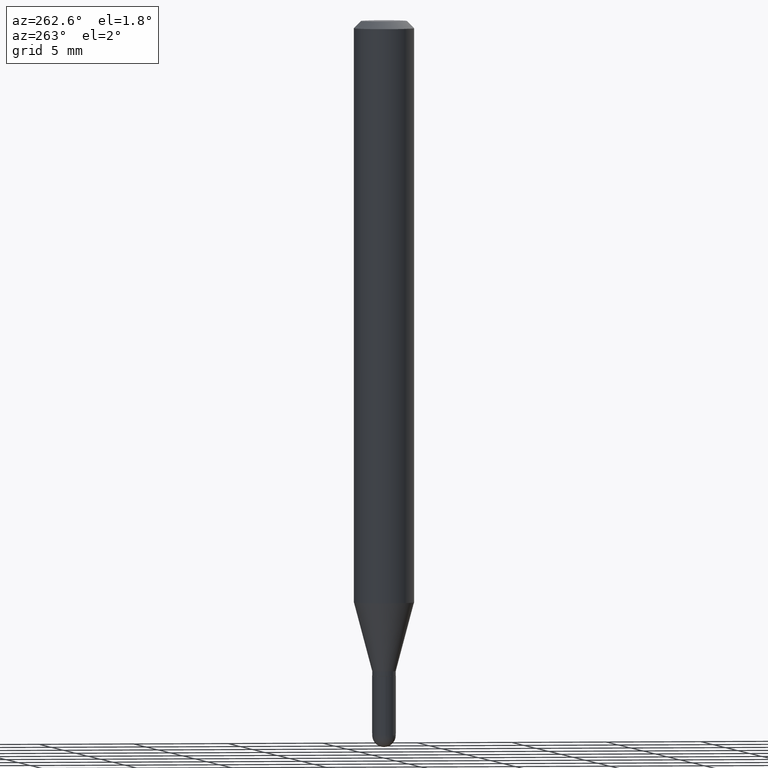
[diagram: clean part render]
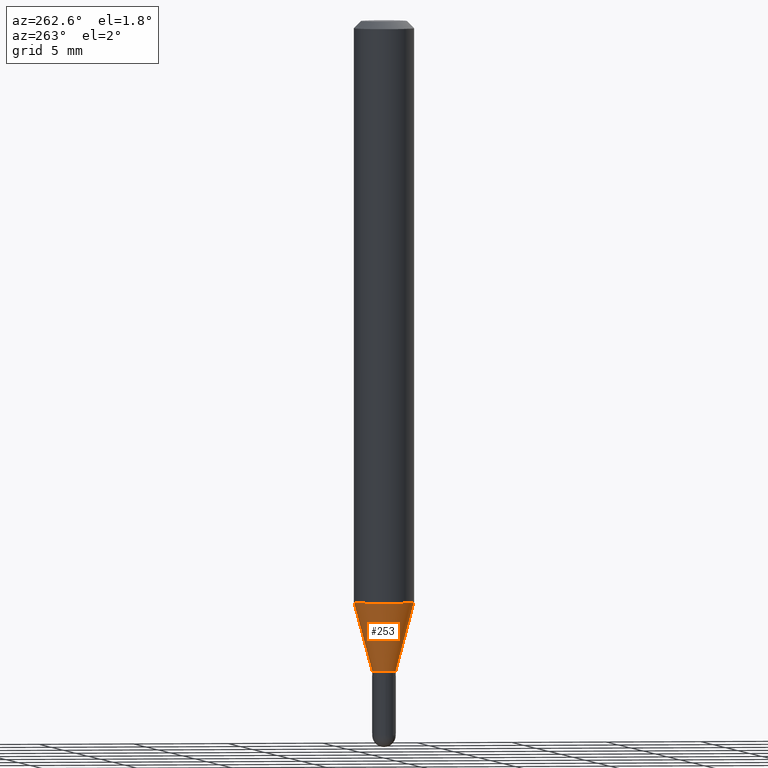
[diagram: same view with one face highlighted and labeled with its STEP entity id]
A machine part, auxiliary view. The second image highlights one B-rep face of the part: STEP entity #253.
In plain terms, the highlighted conical surface has half-angle 15 deg.
Its self-contained STEP definition (entity closure, byte-faithful):
#17 = CARTESIAN_POINT ( 'NONE',  ( 3.284268798558277710E-29, -4.689053435096215109E-15, -1.343000000000000416 ) ) ;
#41 = VECTOR ( 'NONE', #47, 39.37007874015748854 ) ;
#47 = DIRECTION ( 'NONE',  ( -1.807323732225332900E-15, -0.2588190451025185190, 0.9659258262890689783 ) ) ;
#50 = CARTESIAN_POINT ( 'NONE',  ( 3.090860900556744730E-16, 0.02449999999999523739, -1.343000000000000416 ) ) ;
#104 = CONICAL_SURFACE ( 'NONE', #461, 0.02449999999999992462, 0.2617993877991506291 ) ;
#110 = CIRCLE ( 'NONE', #509, 0.06250000000000000000 ) ;
#119 = EDGE_LOOP ( 'NONE', ( #469, #161, #244, #437 ) ) ;
#121 = DIRECTION ( 'NONE',  ( -6.982962677686265133E-15, -1.000000000000000000, 0.000000000000000000 ) ) ;
#122 = VERTEX_POINT ( 'NONE', #50 ) ;
#139 = CARTESIAN_POINT ( 'NONE',  ( 1.740829702612568216E-16, 0.02449999999999523392, -1.343000000000000416 ) ) ;
#141 = LINE ( 'NONE', #139, #401 ) ;
#148 = CARTESIAN_POINT ( 'NONE',  ( -1.710825856032801340E-16, -0.02450000000000461531, -1.343000000000000416 ) ) ;
#161 = ORIENTED_EDGE ( 'NONE', *, *, #195, .T. ) ;
#182 = DIRECTION ( 'NONE',  ( -2.445471927444732928E-29, 3.491476869021752385E-15, 1.000000000000000000 ) ) ;
#195 = EDGE_CURVE ( 'NONE', #122, #506, #203, .T. ) ;
#203 = CIRCLE ( 'NONE', #220, 0.02449999999999992462 ) ;
#205 = VERTEX_POINT ( 'NONE', #324 ) ;
#220 = AXIS2_PLACEMENT_3D ( 'NONE', #17, #182, #507 ) ;
#242 = CARTESIAN_POINT ( 'NONE',  ( -1.710825856032801340E-16, -0.02450000000000461531, -1.343000000000000416 ) ) ;
#244 = ORIENTED_EDGE ( 'NONE', *, *, #267, .T. ) ;
#253 = ADVANCED_FACE ( 'NONE', ( #318 ), #104, .T. ) ;
#267 = EDGE_CURVE ( 'NONE', #506, #205, #366, .T. ) ;
#314 = VERTEX_POINT ( 'NONE', #413 ) ;
#318 = FACE_OUTER_BOUND ( 'NONE', #119, .T. ) ;
#319 = EDGE_CURVE ( 'NONE', #314, #205, #110, .T. ) ;
#324 = CARTESIAN_POINT ( 'NONE',  ( -4.364351673553624323E-16, -0.06250000000000420497, -1.201182069312383138 ) ) ;
#345 = EDGE_CURVE ( 'NONE', #122, #314, #141, .T. ) ;
#346 = CARTESIAN_POINT ( 'NONE',  ( 2.937457030253406908E-29, -4.193899410487870118E-15, -1.201182069312383360 ) ) ;
#366 = LINE ( 'NONE', #242, #41 ) ;
#377 = DIRECTION ( 'NONE',  ( 1.839019923739602682E-15, 0.2588190451025252914, 0.9659258262890670910 ) ) ;
#401 = VECTOR ( 'NONE', #377, 39.37007874015748143 ) ;
#407 = DIRECTION ( 'NONE',  ( -2.445471927444732928E-29, 3.491476869021752385E-15, 1.000000000000000000 ) ) ;
#413 = CARTESIAN_POINT ( 'NONE',  ( 4.440892098500917054E-16, 0.06249999999999578809, -1.201182069312383804 ) ) ;
#420 = DIRECTION ( 'NONE',  ( -6.982962677686265922E-15, -1.000000000000000000, 4.370956789862821150E-15 ) ) ;
#437 = ORIENTED_EDGE ( 'NONE', *, *, #319, .F. ) ;
#450 = CARTESIAN_POINT ( 'NONE',  ( 3.284268798558277710E-29, -4.689053435096215109E-15, -1.343000000000000416 ) ) ;
#461 = AXIS2_PLACEMENT_3D ( 'NONE', #450, #407, #121 ) ;
#469 = ORIENTED_EDGE ( 'NONE', *, *, #345, .F. ) ;
#493 = DIRECTION ( 'NONE',  ( -2.445471927444732928E-29, 3.491476869021752385E-15, 1.000000000000000000 ) ) ;
#506 = VERTEX_POINT ( 'NONE', #148 ) ;
#507 = DIRECTION ( 'NONE',  ( -6.982962677686265133E-15, -1.000000000000000000, 0.000000000000000000 ) ) ;
#509 = AXIS2_PLACEMENT_3D ( 'NONE', #346, #493, #420 ) ;